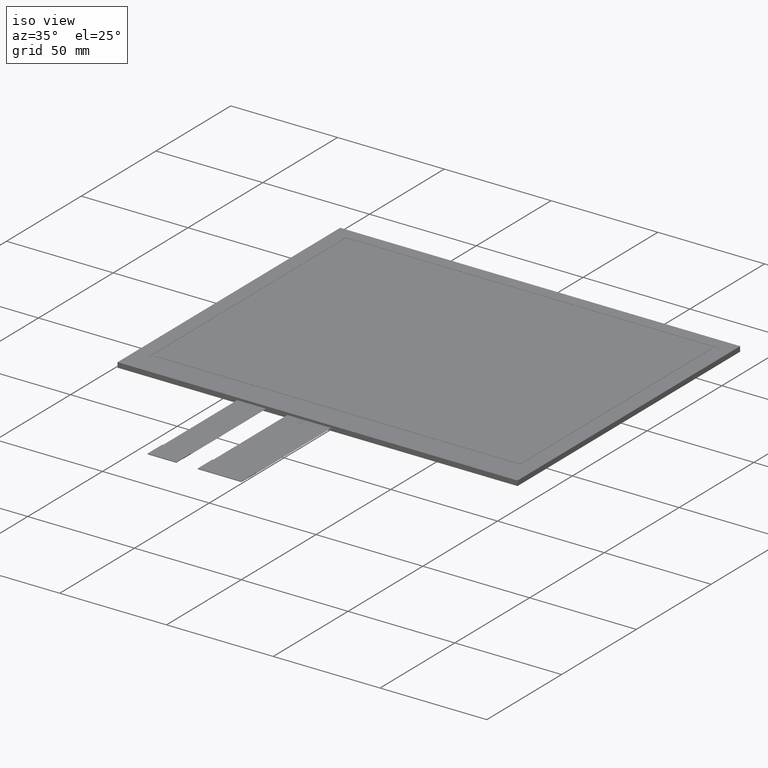
[diagram: clean part render]
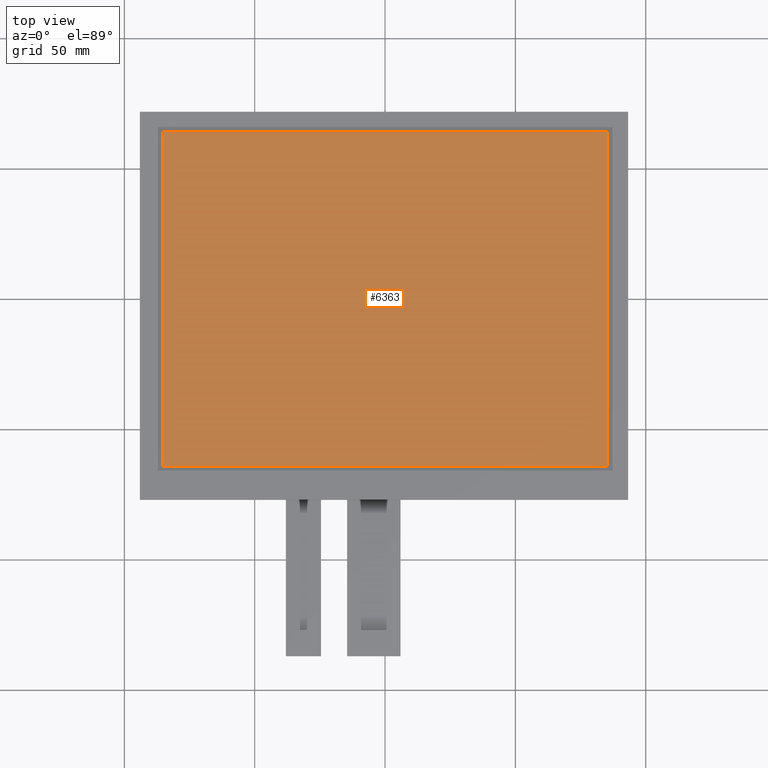
[diagram: tour spotlight — one face highlighted and labeled with its STEP entity id]
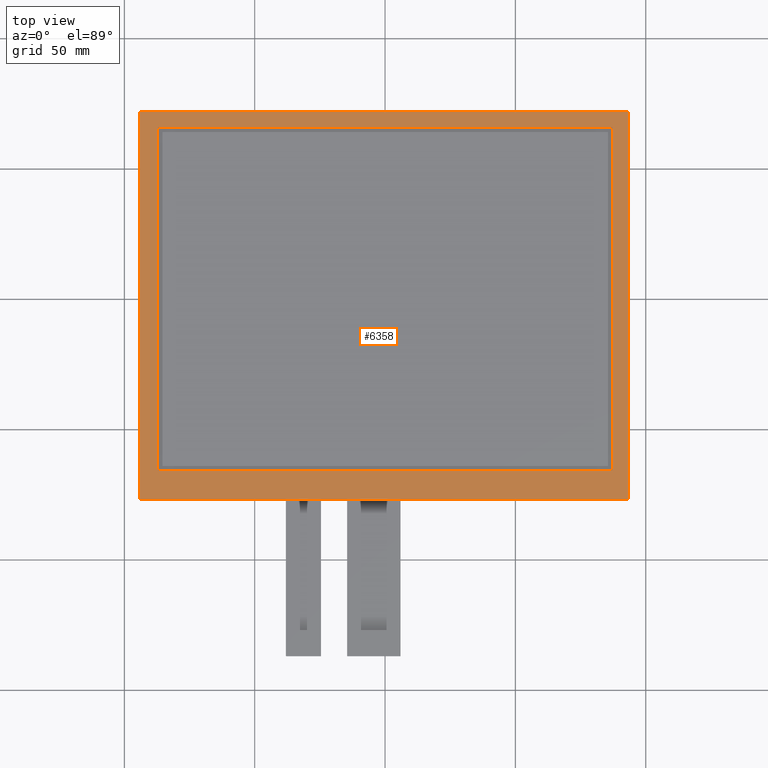
[diagram: tour spotlight — one face highlighted and labeled with its STEP entity id]
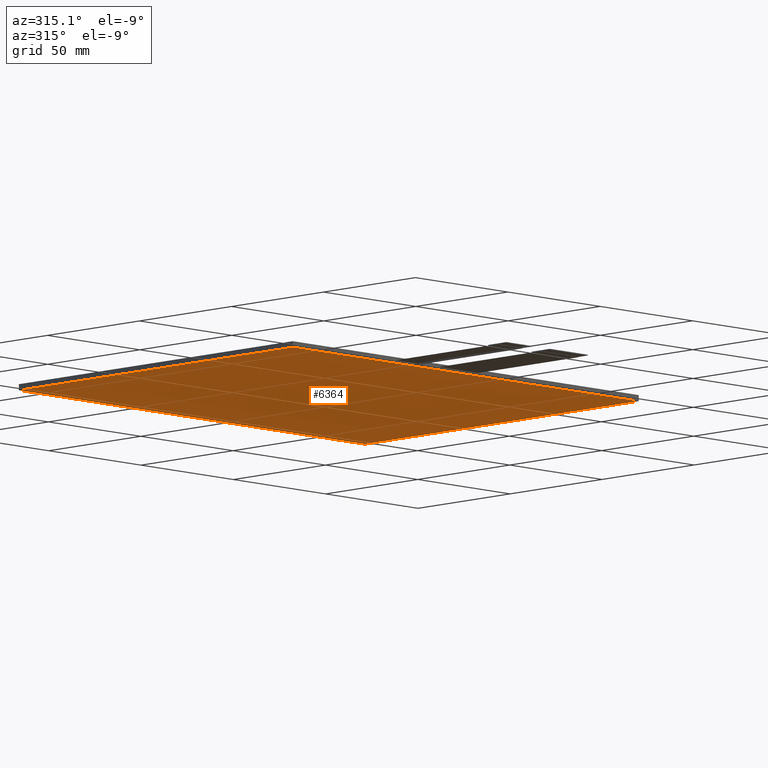
[diagram: tour spotlight — one face highlighted and labeled with its STEP entity id]
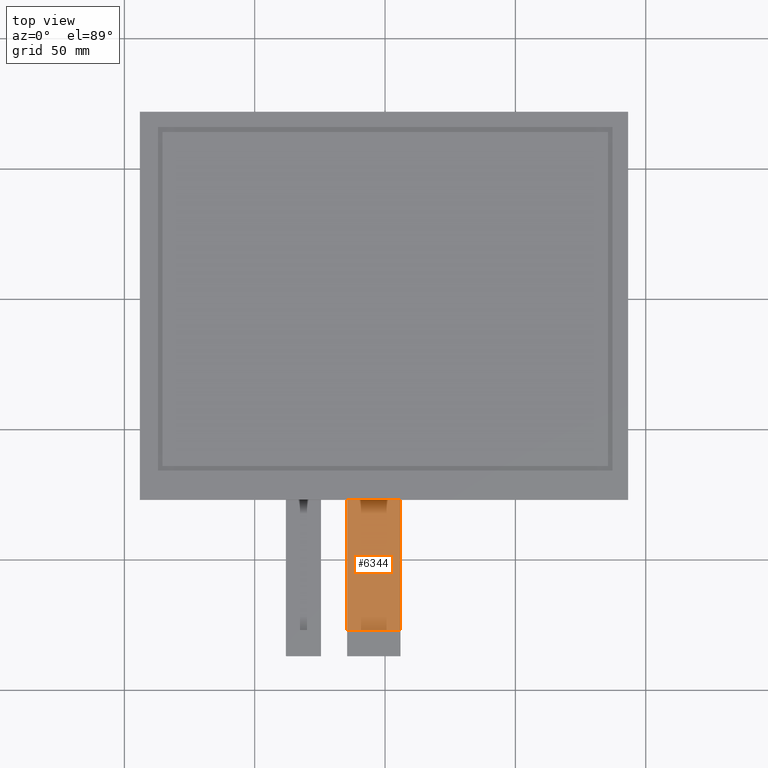
[diagram: tour spotlight — one face highlighted and labeled with its STEP entity id]
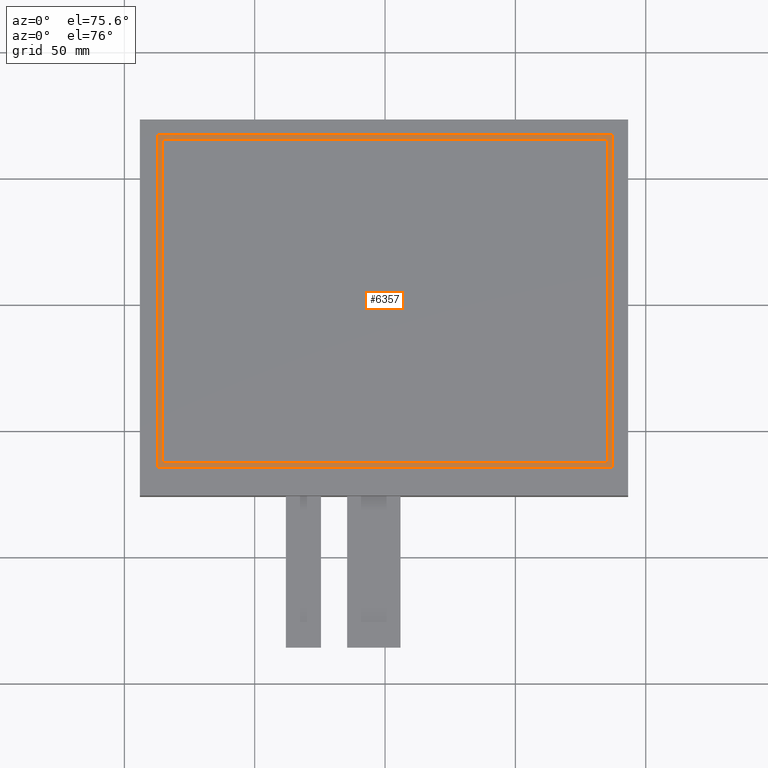
[diagram: tour spotlight — one face highlighted and labeled with its STEP entity id]
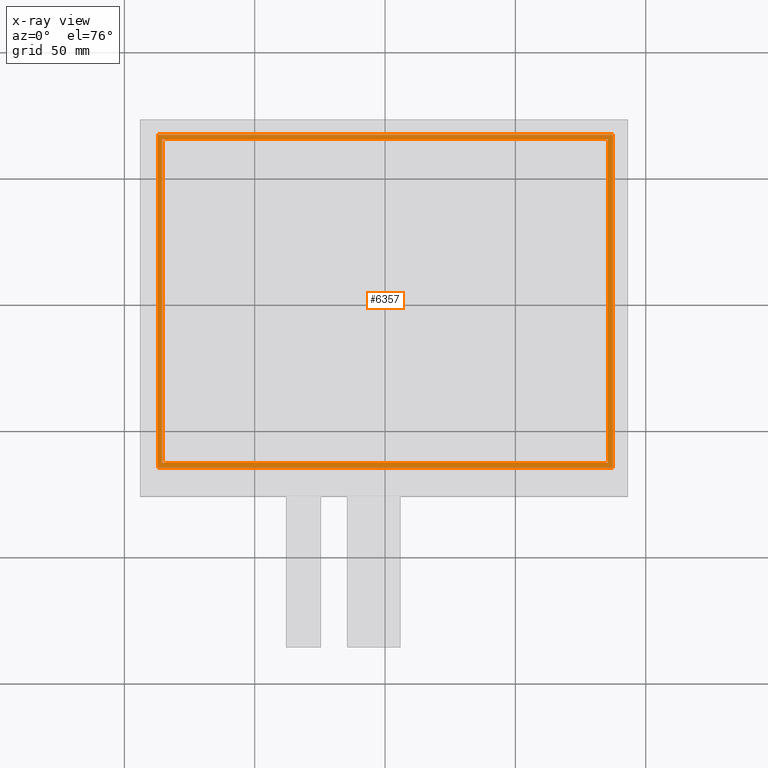
[diagram: x-ray of the same camera — body ghosted, this tour face saturated]
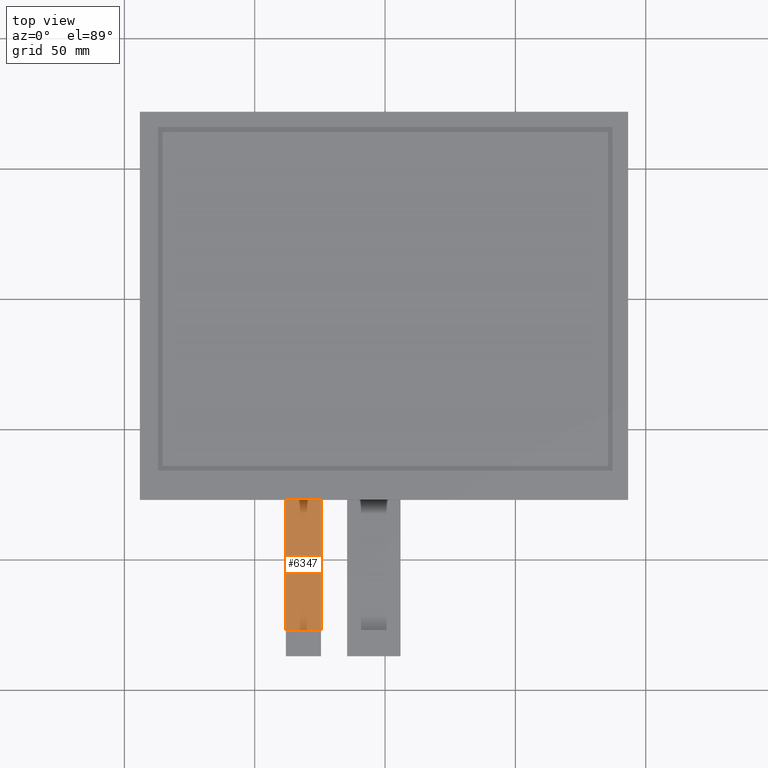
[diagram: tour spotlight — one face highlighted and labeled with its STEP entity id]
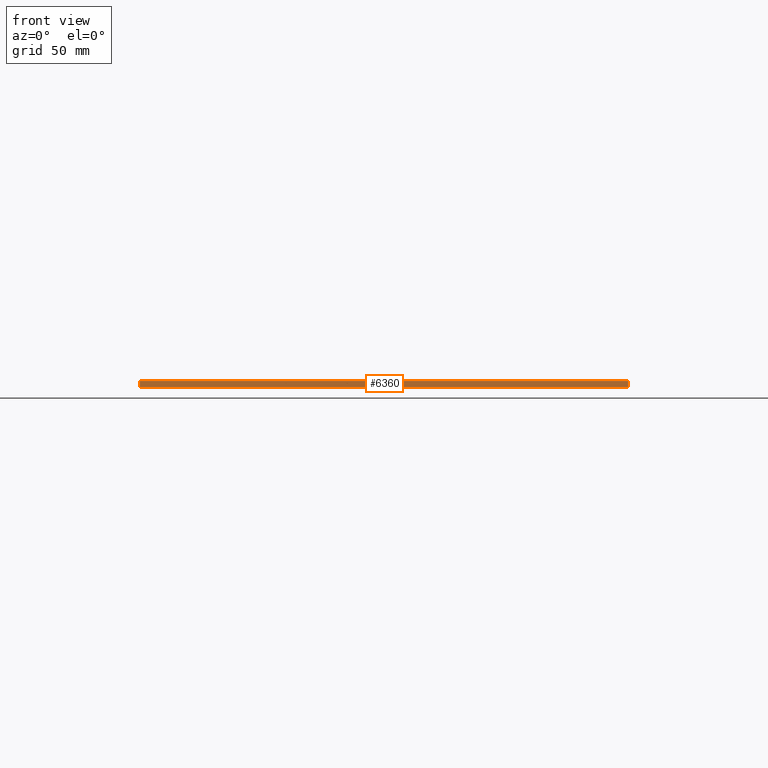
[diagram: tour spotlight — one face highlighted and labeled with its STEP entity id]
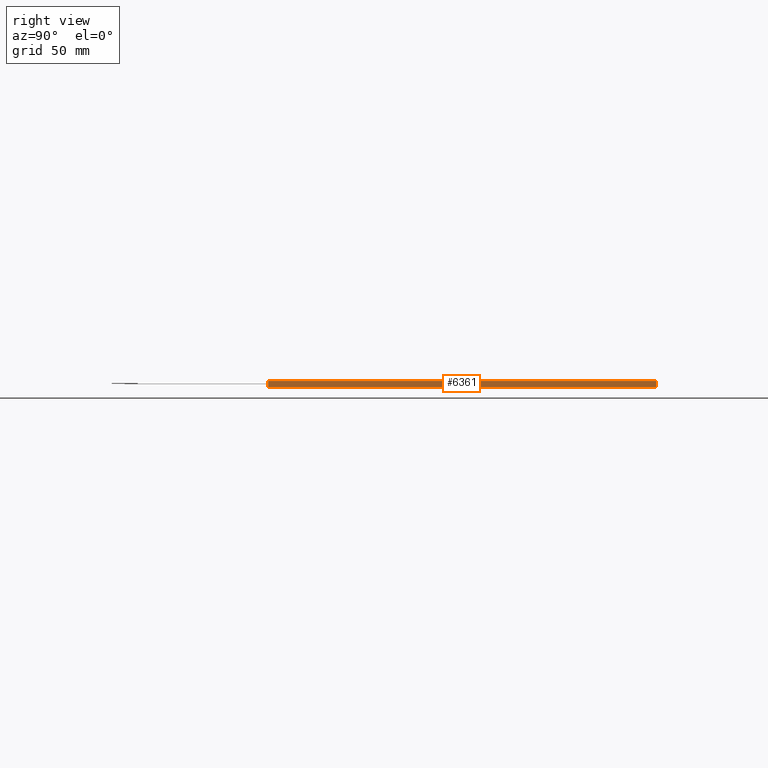
[diagram: tour spotlight — one face highlighted and labeled with its STEP entity id]
A machine part: a face-by-face anatomy tour. The part has 302 B-rep faces; the first image is the clean iso view, then the 8 largest visible faces are spotlighted one at a time (largest first), each with its STEP entity span.

Face 1 — top view, entity #6363. In plain terms, the highlighted planar face has unit normal (0, 0, 1).
Definition (entity closure, byte-faithful):
#425=PLANE('',#6693);
#727=FACE_OUTER_BOUND('',#1033,.T.);
#1033=EDGE_LOOP('',(#6051,#6052,#6053,#6054));
#1879=LINE('',#9907,#2759);
#1883=LINE('',#9915,#2763);
#1886=LINE('',#9921,#2766);
#1889=LINE('',#9926,#2769);
#2759=VECTOR('',#8131,10.);
#2763=VECTOR('',#8137,10.);
#2766=VECTOR('',#8142,10.);
#2769=VECTOR('',#8147,10.);
#3371=VERTEX_POINT('',#9905);
#3372=VERTEX_POINT('',#9906);
#3375=VERTEX_POINT('',#9914);
#3377=VERTEX_POINT('',#9920);
#4247=EDGE_CURVE('',#3371,#3372,#1879,.T.);
#4251=EDGE_CURVE('',#3375,#3371,#1883,.T.);
#4254=EDGE_CURVE('',#3377,#3375,#1886,.T.);
#4257=EDGE_CURVE('',#3372,#3377,#1889,.T.);
#6051=ORIENTED_EDGE('',*,*,#4247,.T.);
#6052=ORIENTED_EDGE('',*,*,#4257,.T.);
#6053=ORIENTED_EDGE('',*,*,#4254,.T.);
#6054=ORIENTED_EDGE('',*,*,#4251,.T.);
#6363=ADVANCED_FACE('',(#727),#425,.T.);
#6693=AXIS2_PLACEMENT_3D('',#9978,#8193,#8194);
#8131=DIRECTION('',(1.,0.,0.));
#8137=DIRECTION('',(1.38561375928257E-16,-1.,0.));
#8142=DIRECTION('',(-1.,0.,0.));
#8147=DIRECTION('',(1.38561375928257E-16,1.,0.));
#8193=DIRECTION('center_axis',(0.,0.,1.));
#8194=DIRECTION('ref_axis',(1.,0.,0.));
#9905=CARTESIAN_POINT('',(-85.45,-64.1,0.));
#9906=CARTESIAN_POINT('',(85.45,-64.1,0.));
#9907=CARTESIAN_POINT('',(-42.925,-64.1,0.));
#9914=CARTESIAN_POINT('',(-85.45,64.1,0.));
#9915=CARTESIAN_POINT('',(-85.45,30.775,0.));
#9920=CARTESIAN_POINT('',(85.45,64.1,0.));
#9921=CARTESIAN_POINT('',(42.525,64.1,0.));
#9926=CARTESIAN_POINT('',(85.45,-33.325,0.));
#9978=CARTESIAN_POINT('Origin',(-0.400000000000009,-2.54999999999999,0.));

Face 2 — top view, entity #6358. In plain terms, the highlighted planar face has unit normal (0, 0, 1).
Definition (entity closure, byte-faithful):
#126=FACE_BOUND('',#1026,.T.);
#420=PLANE('',#6688);
#722=FACE_OUTER_BOUND('',#1025,.T.);
#1025=EDGE_LOOP('',(#6019,#6020,#6021,#6022));
#1026=EDGE_LOOP('',(#6023,#6024,#6025,#6026));
#1891=LINE('',#9931,#2771);
#1895=LINE('',#9939,#2775);
#1898=LINE('',#9945,#2778);
#1901=LINE('',#9950,#2781);
#1903=LINE('',#9956,#2783);
#1904=LINE('',#9958,#2784);
#1905=LINE('',#9960,#2785);
#1906=LINE('',#9961,#2786);
#2771=VECTOR('',#8151,10.);
#2775=VECTOR('',#8157,10.);
#2778=VECTOR('',#8162,10.);
#2781=VECTOR('',#8167,10.);
#2783=VECTOR('',#8173,10.);
#2784=VECTOR('',#8174,10.);
#2785=VECTOR('',#8175,10.);
#2786=VECTOR('',#8176,10.);
#3379=VERTEX_POINT('',#9929);
#3380=VERTEX_POINT('',#9930);
#3383=VERTEX_POINT('',#9938);
#3385=VERTEX_POINT('',#9944);
#3387=VERTEX_POINT('',#9954);
#3388=VERTEX_POINT('',#9955);
#3389=VERTEX_POINT('',#9957);
#3390=VERTEX_POINT('',#9959);
#4259=EDGE_CURVE('',#3379,#3380,#1891,.T.);
#4263=EDGE_CURVE('',#3383,#3379,#1895,.T.);
#4266=EDGE_CURVE('',#3385,#3383,#1898,.T.);
#4269=EDGE_CURVE('',#3380,#3385,#1901,.T.);
#4271=EDGE_CURVE('',#3387,#3388,#1903,.T.);
#4272=EDGE_CURVE('',#3388,#3389,#1904,.T.);
#4273=EDGE_CURVE('',#3389,#3390,#1905,.T.);
#4274=EDGE_CURVE('',#3390,#3387,#1906,.T.);
#6019=ORIENTED_EDGE('',*,*,#4271,.T.);
#6020=ORIENTED_EDGE('',*,*,#4272,.T.);
#6021=ORIENTED_EDGE('',*,*,#4273,.T.);
#6022=ORIENTED_EDGE('',*,*,#4274,.T.);
#6023=ORIENTED_EDGE('',*,*,#4259,.T.);
#6024=ORIENTED_EDGE('',*,*,#4269,.T.);
#6025=ORIENTED_EDGE('',*,*,#4266,.T.);
#6026=ORIENTED_EDGE('',*,*,#4263,.T.);
#6358=ADVANCED_FACE('',(#722,#126),#420,.T.);
#6688=AXIS2_PLACEMENT_3D('',#9953,#8171,#8172);
#8151=DIRECTION('',(-2.69553389893816E-16,1.,0.));
#8157=DIRECTION('',(-1.,-1.52782985040159E-16,0.));
#8162=DIRECTION('',(0.,-1.,0.));
#8167=DIRECTION('',(1.,0.,0.));
#8171=DIRECTION('center_axis',(0.,0.,1.));
#8172=DIRECTION('ref_axis',(1.,0.,0.));
#8173=DIRECTION('',(-1.,0.,0.));
#8174=DIRECTION('',(2.3859729206182E-16,-1.,0.));
#8175=DIRECTION('',(1.,1.42260291462914E-16,0.));
#8176=DIRECTION('',(-1.1929864603091E-16,1.,0.));
#9929=CARTESIAN_POINT('',(-87.15,-65.9,0.));
#9930=CARTESIAN_POINT('',(-87.15,65.9,0.));
#9931=CARTESIAN_POINT('',(-87.15,-34.225,0.));
#9938=CARTESIAN_POINT('',(87.25,-65.9,0.));
#9939=CARTESIAN_POINT('',(43.425,-65.9,0.));
#9944=CARTESIAN_POINT('',(87.25,65.9,0.));
#9945=CARTESIAN_POINT('',(87.25,31.675,0.));
#9950=CARTESIAN_POINT('',(-43.775,65.9,0.));
#9953=CARTESIAN_POINT('Origin',(-0.400000000000009,-2.54999999999999,0.));
#9954=CARTESIAN_POINT('',(93.25,71.9,0.));
#9955=CARTESIAN_POINT('',(-94.05,71.9,0.));
#9956=CARTESIAN_POINT('',(93.25,71.9,0.));
#9957=CARTESIAN_POINT('',(-94.05,-77.,0.));
#9958=CARTESIAN_POINT('',(-94.05,71.9,0.));
#9959=CARTESIAN_POINT('',(93.25,-77.,0.));
#9960=CARTESIAN_POINT('',(-94.05,-77.,0.));
#9961=CARTESIAN_POINT('',(93.25,-77.,0.));

Face 3 — auxiliary view, entity #6364. In plain terms, the highlighted planar face has unit normal (0, 0, -1).
Definition (entity closure, byte-faithful):
#426=PLANE('',#6694);
#728=FACE_OUTER_BOUND('',#1034,.T.);
#1034=EDGE_LOOP('',(#6055,#6056,#6057,#6058));
#1908=LINE('',#9966,#2788);
#1910=LINE('',#9970,#2790);
#1912=LINE('',#9974,#2792);
#1914=LINE('',#9977,#2794);
#2788=VECTOR('',#8180,10.);
#2790=VECTOR('',#8184,10.);
#2792=VECTOR('',#8188,10.);
#2794=VECTOR('',#8192,10.);
#3391=VERTEX_POINT('',#9963);
#3392=VERTEX_POINT('',#9965);
#3393=VERTEX_POINT('',#9969);
#3394=VERTEX_POINT('',#9973);
#4276=EDGE_CURVE('',#3392,#3391,#1908,.T.);
#4278=EDGE_CURVE('',#3393,#3392,#1910,.T.);
#4280=EDGE_CURVE('',#3394,#3393,#1912,.T.);
#4282=EDGE_CURVE('',#3391,#3394,#1914,.T.);
#6055=ORIENTED_EDGE('',*,*,#4282,.T.);
#6056=ORIENTED_EDGE('',*,*,#4280,.T.);
#6057=ORIENTED_EDGE('',*,*,#4278,.T.);
#6058=ORIENTED_EDGE('',*,*,#4276,.T.);
#6364=ADVANCED_FACE('',(#728),#426,.T.);
#6694=AXIS2_PLACEMENT_3D('',#9979,#8195,#8196);
#8180=DIRECTION('',(-2.3859729206182E-16,1.,0.));
#8184=DIRECTION('',(-1.,-1.42260291462914E-16,0.));
#8188=DIRECTION('',(1.1929864603091E-16,-1.,0.));
#8192=DIRECTION('',(1.,0.,0.));
#8195=DIRECTION('center_axis',(0.,0.,-1.));
#8196=DIRECTION('ref_axis',(-1.,0.,0.));
#9963=CARTESIAN_POINT('',(-94.05,71.9,-2.35));
#9965=CARTESIAN_POINT('',(-94.05,-77.,-2.35));
#9966=CARTESIAN_POINT('',(-94.05,71.9,-2.35));
#9969=CARTESIAN_POINT('',(93.25,-77.,-2.35));
#9970=CARTESIAN_POINT('',(-94.05,-77.,-2.35));
#9973=CARTESIAN_POINT('',(93.25,71.9,-2.35));
#9974=CARTESIAN_POINT('',(93.25,-77.,-2.35));
#9977=CARTESIAN_POINT('',(93.25,71.9,-2.35));
#9979=CARTESIAN_POINT('Origin',(-0.400000000000009,-2.54999999999999,-2.35));

Face 4 — top view, entity #6344. In plain terms, the highlighted planar face has unit normal (0, 0, 1).
Definition (entity closure, byte-faithful):
#406=PLANE('',#6674);
#708=FACE_OUTER_BOUND('',#1010,.T.);
#1010=EDGE_LOOP('',(#5955,#5956,#5957,#5958));
#1858=LINE('',#9864,#2738);
#1861=LINE('',#9870,#2741);
#1871=LINE('',#9889,#2751);
#1872=LINE('',#9891,#2752);
#2738=VECTOR('',#8088,10.);
#2741=VECTOR('',#8093,10.);
#2751=VECTOR('',#8111,10.);
#2752=VECTOR('',#8114,10.);
#3360=VERTEX_POINT('',#9861);
#3361=VERTEX_POINT('',#9863);
#3363=VERTEX_POINT('',#9869);
#3368=VERTEX_POINT('',#9887);
#4226=EDGE_CURVE('',#3361,#3360,#1858,.T.);
#4229=EDGE_CURVE('',#3360,#3363,#1861,.T.);
#4239=EDGE_CURVE('',#3363,#3368,#1871,.T.);
#4240=EDGE_CURVE('',#3361,#3368,#1872,.T.);
#5955=ORIENTED_EDGE('',*,*,#4229,.T.);
#5956=ORIENTED_EDGE('',*,*,#4239,.T.);
#5957=ORIENTED_EDGE('',*,*,#4240,.F.);
#5958=ORIENTED_EDGE('',*,*,#4226,.T.);
#6344=ADVANCED_FACE('',(#708),#406,.T.);
#6674=AXIS2_PLACEMENT_3D('',#9890,#8112,#8113);
#8088=DIRECTION('',(4.81096644004234E-16,-1.,0.));
#8093=DIRECTION('',(1.,0.,0.));
#8111=DIRECTION('',(-1.85037170770859E-16,1.,0.));
#8112=DIRECTION('center_axis',(0.,0.,1.));
#8113=DIRECTION('ref_axis',(1.,0.,0.));
#8114=DIRECTION('',(1.,1.42260291462914E-16,0.));
#9861=CARTESIAN_POINT('',(-14.55,-127.,-1.1));
#9863=CARTESIAN_POINT('',(-14.55,-77.,-1.1));
#9864=CARTESIAN_POINT('',(-14.55,-77.,-1.1));
#9869=CARTESIAN_POINT('',(5.95000000000003,-127.,-1.1));
#9870=CARTESIAN_POINT('',(0.82500000000002,-127.,-1.1));
#9887=CARTESIAN_POINT('',(5.95000000000002,-77.,-1.1));
#9889=CARTESIAN_POINT('',(5.95000000000003,-137.,-1.1));
#9890=CARTESIAN_POINT('Origin',(-4.29999999999999,-107.,-1.1));
#9891=CARTESIAN_POINT('',(44.475,-77.,-1.1));

Face 5 — auxiliary view, entity #6357. An x-ray twin of the same camera follows (body ghosted, this face saturated) — the face is partly hidden behind the body. In plain terms, the highlighted planar face has unit normal (0, 0, -1).
Definition (entity closure, byte-faithful):
#125=FACE_BOUND('',#1024,.T.);
#419=PLANE('',#6687);
#721=FACE_OUTER_BOUND('',#1023,.T.);
#1023=EDGE_LOOP('',(#6011,#6012,#6013,#6014));
#1024=EDGE_LOOP('',(#6015,#6016,#6017,#6018));
#1881=LINE('',#9911,#2761);
#1885=LINE('',#9918,#2765);
#1888=LINE('',#9924,#2768);
#1890=LINE('',#9927,#2770);
#1893=LINE('',#9935,#2773);
#1897=LINE('',#9942,#2777);
#1900=LINE('',#9948,#2780);
#1902=LINE('',#9951,#2782);
#2761=VECTOR('',#8133,10.);
#2765=VECTOR('',#8139,10.);
#2768=VECTOR('',#8144,10.);
#2770=VECTOR('',#8148,10.);
#2773=VECTOR('',#8153,10.);
#2777=VECTOR('',#8159,10.);
#2780=VECTOR('',#8164,10.);
#2782=VECTOR('',#8168,10.);
#3373=VERTEX_POINT('',#9908);
#3374=VERTEX_POINT('',#9910);
#3376=VERTEX_POINT('',#9916);
#3378=VERTEX_POINT('',#9922);
#3381=VERTEX_POINT('',#9932);
#3382=VERTEX_POINT('',#9934);
#3384=VERTEX_POINT('',#9940);
#3386=VERTEX_POINT('',#9946);
#4249=EDGE_CURVE('',#3373,#3374,#1881,.T.);
#4253=EDGE_CURVE('',#3376,#3373,#1885,.T.);
#4256=EDGE_CURVE('',#3378,#3376,#1888,.T.);
#4258=EDGE_CURVE('',#3374,#3378,#1890,.T.);
#4261=EDGE_CURVE('',#3381,#3382,#1893,.T.);
#4265=EDGE_CURVE('',#3384,#3381,#1897,.T.);
#4268=EDGE_CURVE('',#3386,#3384,#1900,.T.);
#4270=EDGE_CURVE('',#3382,#3386,#1902,.T.);
#6011=ORIENTED_EDGE('',*,*,#4270,.F.);
#6012=ORIENTED_EDGE('',*,*,#4261,.F.);
#6013=ORIENTED_EDGE('',*,*,#4265,.F.);
#6014=ORIENTED_EDGE('',*,*,#4268,.F.);
#6015=ORIENTED_EDGE('',*,*,#4258,.F.);
#6016=ORIENTED_EDGE('',*,*,#4249,.F.);
#6017=ORIENTED_EDGE('',*,*,#4253,.F.);
#6018=ORIENTED_EDGE('',*,*,#4256,.F.);
#6357=ADVANCED_FACE('',(#721,#125),#419,.F.);
#6687=AXIS2_PLACEMENT_3D('',#9952,#8169,#8170);
#8133=DIRECTION('',(1.,0.,0.));
#8139=DIRECTION('',(1.38561375928257E-16,-1.,0.));
#8144=DIRECTION('',(-1.,0.,0.));
#8148=DIRECTION('',(1.38561375928257E-16,1.,0.));
#8153=DIRECTION('',(-2.69553389893816E-16,1.,0.));
#8159=DIRECTION('',(-1.,-1.52782985040159E-16,0.));
#8164=DIRECTION('',(0.,-1.,0.));
#8168=DIRECTION('',(1.,0.,0.));
#8169=DIRECTION('center_axis',(0.,0.,-1.));
#8170=DIRECTION('ref_axis',(-1.,0.,0.));
#9908=CARTESIAN_POINT('',(-85.45,-64.1,-0.1));
#9910=CARTESIAN_POINT('',(85.45,-64.1,-0.1));
#9911=CARTESIAN_POINT('',(85.45,-64.1,-0.1));
#9916=CARTESIAN_POINT('',(-85.45,64.1,-0.1));
#9918=CARTESIAN_POINT('',(-85.45,-64.1,-0.1));
#9922=CARTESIAN_POINT('',(85.45,64.1,-0.1));
#9924=CARTESIAN_POINT('',(-85.45,64.1,-0.1));
#9927=CARTESIAN_POINT('',(85.45,64.1,-0.1));
#9932=CARTESIAN_POINT('',(-87.15,-65.9,-0.1));
#9934=CARTESIAN_POINT('',(-87.15,65.9,-0.1));
#9935=CARTESIAN_POINT('',(-87.15,65.9,-0.1));
#9940=CARTESIAN_POINT('',(87.25,-65.9,-0.1));
#9942=CARTESIAN_POINT('',(-87.15,-65.9,-0.1));
#9946=CARTESIAN_POINT('',(87.25,65.9,-0.1));
#9948=CARTESIAN_POINT('',(87.25,-65.9,-0.1));
#9951=CARTESIAN_POINT('',(87.25,65.9,-0.1));
#9952=CARTESIAN_POINT('Origin',(0.0499999999999901,2.66453525910038E-14,
-0.1));

Face 6 — top view, entity #6347. In plain terms, the highlighted planar face has unit normal (0, 0, 1).
Definition (entity closure, byte-faithful):
#409=PLANE('',#6677);
#711=FACE_OUTER_BOUND('',#1013,.T.);
#1013=EDGE_LOOP('',(#5971,#5972,#5973,#5974));
#1850=LINE('',#9848,#2730);
#1865=LINE('',#9878,#2745);
#1876=LINE('',#9899,#2756);
#1877=LINE('',#9901,#2757);
#2730=VECTOR('',#8076,10.);
#2745=VECTOR('',#8101,10.);
#2756=VECTOR('',#8122,10.);
#2757=VECTOR('',#8125,10.);
#3354=VERTEX_POINT('',#9845);
#3355=VERTEX_POINT('',#9847);
#3365=VERTEX_POINT('',#9877);
#3370=VERTEX_POINT('',#9897);
#4218=EDGE_CURVE('',#3355,#3354,#1850,.T.);
#4233=EDGE_CURVE('',#3354,#3365,#1865,.T.);
#4244=EDGE_CURVE('',#3365,#3370,#1876,.T.);
#4245=EDGE_CURVE('',#3355,#3370,#1877,.T.);
#5971=ORIENTED_EDGE('',*,*,#4233,.T.);
#5972=ORIENTED_EDGE('',*,*,#4244,.T.);
#5973=ORIENTED_EDGE('',*,*,#4245,.F.);
#5974=ORIENTED_EDGE('',*,*,#4218,.T.);
#6347=ADVANCED_FACE('',(#711),#409,.T.);
#6677=AXIS2_PLACEMENT_3D('',#9900,#8123,#8124);
#8076=DIRECTION('',(6.66133814775094E-16,-1.,0.));
#8101=DIRECTION('',(1.,0.,0.));
#8122=DIRECTION('',(-2.22044604925031E-16,1.,0.));
#8123=DIRECTION('center_axis',(0.,0.,1.));
#8124=DIRECTION('ref_axis',(1.,0.,0.));
#8125=DIRECTION('',(1.,1.42260291462914E-16,0.));
#9845=CARTESIAN_POINT('',(-38.05,-127.,-1.1));
#9847=CARTESIAN_POINT('',(-38.05,-77.,-1.1));
#9848=CARTESIAN_POINT('',(-38.05,-77.,-1.1));
#9877=CARTESIAN_POINT('',(-24.55,-127.,-1.1));
#9878=CARTESIAN_POINT('',(-27.925,-127.,-1.1));
#9897=CARTESIAN_POINT('',(-24.55,-77.,-1.1));
#9899=CARTESIAN_POINT('',(-24.55,-137.,-1.1));
#9900=CARTESIAN_POINT('Origin',(-31.3,-107.,-1.1));
#9901=CARTESIAN_POINT('',(30.975,-77.,-1.1));

Face 7 — front view, entity #6360. In plain terms, the highlighted planar face has unit normal (0, -1, 0).
Definition (entity closure, byte-faithful):
#127=FACE_BOUND('',#1029,.T.);
#128=FACE_BOUND('',#1030,.T.);
#422=PLANE('',#6690);
#724=FACE_OUTER_BOUND('',#1028,.T.);
#1028=EDGE_LOOP('',(#6031,#6032,#6033,#6034));
#1029=EDGE_LOOP('',(#6035,#6036,#6037,#6038));
#1030=EDGE_LOOP('',(#6039,#6040,#6041,#6042));
#1851=LINE('',#9850,#2731);
#1859=LINE('',#9866,#2739);
#1870=LINE('',#9888,#2750);
#1872=LINE('',#9891,#2752);
#1873=LINE('',#9893,#2753);
#1875=LINE('',#9898,#2755);
#1877=LINE('',#9901,#2757);
#1878=LINE('',#9903,#2758);
#1905=LINE('',#9960,#2785);
#1909=LINE('',#9967,#2789);
#1910=LINE('',#9970,#2790);
#1911=LINE('',#9971,#2791);
#2731=VECTOR('',#8077,10.);
#2739=VECTOR('',#8089,10.);
#2750=VECTOR('',#8110,10.);
#2752=VECTOR('',#8114,10.);
#2753=VECTOR('',#8117,10.);
#2755=VECTOR('',#8121,10.);
#2757=VECTOR('',#8125,10.);
#2758=VECTOR('',#8128,10.);
#2785=VECTOR('',#8175,10.);
#2789=VECTOR('',#8181,10.);
#2790=VECTOR('',#8184,10.);
#2791=VECTOR('',#8185,10.);
#3355=VERTEX_POINT('',#9847);
#3356=VERTEX_POINT('',#9849);
#3361=VERTEX_POINT('',#9863);
#3362=VERTEX_POINT('',#9865);
#3367=VERTEX_POINT('',#9885);
#3368=VERTEX_POINT('',#9887);
#3369=VERTEX_POINT('',#9895);
#3370=VERTEX_POINT('',#9897);
#3389=VERTEX_POINT('',#9957);
#3390=VERTEX_POINT('',#9959);
#3392=VERTEX_POINT('',#9965);
#3393=VERTEX_POINT('',#9969);
#4219=EDGE_CURVE('',#3356,#3355,#1851,.T.);
#4227=EDGE_CURVE('',#3362,#3361,#1859,.T.);
#4238=EDGE_CURVE('',#3368,#3367,#1870,.T.);
#4240=EDGE_CURVE('',#3361,#3368,#1872,.T.);
#4241=EDGE_CURVE('',#3367,#3362,#1873,.T.);
#4243=EDGE_CURVE('',#3370,#3369,#1875,.T.);
#4245=EDGE_CURVE('',#3355,#3370,#1877,.T.);
#4246=EDGE_CURVE('',#3369,#3356,#1878,.T.);
#4273=EDGE_CURVE('',#3389,#3390,#1905,.T.);
#4277=EDGE_CURVE('',#3389,#3392,#1909,.T.);
#4278=EDGE_CURVE('',#3393,#3392,#1910,.T.);
#4279=EDGE_CURVE('',#3390,#3393,#1911,.T.);
#6031=ORIENTED_EDGE('',*,*,#4273,.F.);
#6032=ORIENTED_EDGE('',*,*,#4277,.T.);
#6033=ORIENTED_EDGE('',*,*,#4278,.F.);
#6034=ORIENTED_EDGE('',*,*,#4279,.F.);
#6035=ORIENTED_EDGE('',*,*,#4238,.T.);
#6036=ORIENTED_EDGE('',*,*,#4241,.T.);
#6037=ORIENTED_EDGE('',*,*,#4227,.T.);
#6038=ORIENTED_EDGE('',*,*,#4240,.T.);
#6039=ORIENTED_EDGE('',*,*,#4243,.T.);
#6040=ORIENTED_EDGE('',*,*,#4246,.T.);
#6041=ORIENTED_EDGE('',*,*,#4219,.T.);
#6042=ORIENTED_EDGE('',*,*,#4245,.T.);
#6360=ADVANCED_FACE('',(#724,#127,#128),#422,.T.);
#6690=AXIS2_PLACEMENT_3D('',#9968,#8182,#8183);
#8077=DIRECTION('',(0.,0.,1.));
#8089=DIRECTION('',(0.,0.,1.));
#8110=DIRECTION('',(0.,0.,-1.));
#8114=DIRECTION('',(1.,1.42260291462914E-16,0.));
#8117=DIRECTION('',(-1.,-1.42260291462914E-16,0.));
#8121=DIRECTION('',(0.,0.,-1.));
#8125=DIRECTION('',(1.,1.42260291462914E-16,0.));
#8128=DIRECTION('',(-1.,-1.42260291462914E-16,0.));
#8175=DIRECTION('',(1.,1.42260291462914E-16,0.));
#8181=DIRECTION('',(0.,0.,-1.));
#8182=DIRECTION('center_axis',(1.42260291462914E-16,-1.,0.));
#8183=DIRECTION('ref_axis',(-1.,-1.42260291462914E-16,0.));
#8184=DIRECTION('',(-1.,-1.42260291462914E-16,0.));
#8185=DIRECTION('',(0.,0.,-1.));
#9847=CARTESIAN_POINT('',(-38.05,-77.,-1.1));
#9849=CARTESIAN_POINT('',(-38.05,-77.,-1.2));
#9850=CARTESIAN_POINT('',(-38.05,-77.,-0.55));
#9863=CARTESIAN_POINT('',(-14.55,-77.,-1.1));
#9865=CARTESIAN_POINT('',(-14.55,-77.,-1.2));
#9866=CARTESIAN_POINT('',(-14.55,-77.,-0.55));
#9885=CARTESIAN_POINT('',(5.95000000000002,-77.,-1.2));
#9887=CARTESIAN_POINT('',(5.95000000000002,-77.,-1.1));
#9888=CARTESIAN_POINT('',(5.95000000000002,-77.,-0.55));
#9891=CARTESIAN_POINT('',(44.475,-77.,-1.1));
#9893=CARTESIAN_POINT('',(44.475,-77.,-1.2));
#9895=CARTESIAN_POINT('',(-24.55,-77.,-1.2));
#9897=CARTESIAN_POINT('',(-24.55,-77.,-1.1));
#9898=CARTESIAN_POINT('',(-24.55,-77.,-0.55));
#9901=CARTESIAN_POINT('',(30.975,-77.,-1.1));
#9903=CARTESIAN_POINT('',(30.975,-77.,-1.2));
#9957=CARTESIAN_POINT('',(-94.05,-77.,0.));
#9959=CARTESIAN_POINT('',(93.25,-77.,0.));
#9960=CARTESIAN_POINT('',(-94.05,-77.,0.));
#9965=CARTESIAN_POINT('',(-94.05,-77.,-2.35));
#9967=CARTESIAN_POINT('',(-94.05,-77.,0.));
#9968=CARTESIAN_POINT('Origin',(93.25,-77.,0.));
#9969=CARTESIAN_POINT('',(93.25,-77.,-2.35));
#9970=CARTESIAN_POINT('',(-94.05,-77.,-2.35));
#9971=CARTESIAN_POINT('',(93.25,-77.,0.));

Face 8 — right view, entity #6361. In plain terms, the highlighted planar face has unit normal (1, 0, 0).
Definition (entity closure, byte-faithful):
#423=PLANE('',#6691);
#725=FACE_OUTER_BOUND('',#1031,.T.);
#1031=EDGE_LOOP('',(#6043,#6044,#6045,#6046));
#1906=LINE('',#9961,#2786);
#1911=LINE('',#9971,#2791);
#1912=LINE('',#9974,#2792);
#1913=LINE('',#9975,#2793);
#2786=VECTOR('',#8176,10.);
#2791=VECTOR('',#8185,10.);
#2792=VECTOR('',#8188,10.);
#2793=VECTOR('',#8189,10.);
#3387=VERTEX_POINT('',#9954);
#3390=VERTEX_POINT('',#9959);
#3393=VERTEX_POINT('',#9969);
#3394=VERTEX_POINT('',#9973);
#4274=EDGE_CURVE('',#3390,#3387,#1906,.T.);
#4279=EDGE_CURVE('',#3390,#3393,#1911,.T.);
#4280=EDGE_CURVE('',#3394,#3393,#1912,.T.);
#4281=EDGE_CURVE('',#3387,#3394,#1913,.T.);
#6043=ORIENTED_EDGE('',*,*,#4274,.F.);
#6044=ORIENTED_EDGE('',*,*,#4279,.T.);
#6045=ORIENTED_EDGE('',*,*,#4280,.F.);
#6046=ORIENTED_EDGE('',*,*,#4281,.F.);
#6361=ADVANCED_FACE('',(#725),#423,.T.);
#6691=AXIS2_PLACEMENT_3D('',#9972,#8186,#8187);
#8176=DIRECTION('',(-1.1929864603091E-16,1.,0.));
#8185=DIRECTION('',(0.,0.,-1.));
#8186=DIRECTION('center_axis',(1.,1.1929864603091E-16,0.));
#8187=DIRECTION('ref_axis',(1.1929864603091E-16,-1.,0.));
#8188=DIRECTION('',(1.1929864603091E-16,-1.,0.));
#8189=DIRECTION('',(0.,0.,-1.));
#9954=CARTESIAN_POINT('',(93.25,71.9,0.));
#9959=CARTESIAN_POINT('',(93.25,-77.,0.));
#9961=CARTESIAN_POINT('',(93.25,-77.,0.));
#9969=CARTESIAN_POINT('',(93.25,-77.,-2.35));
#9971=CARTESIAN_POINT('',(93.25,-77.,0.));
#9972=CARTESIAN_POINT('Origin',(93.25,71.9,0.));
#9973=CARTESIAN_POINT('',(93.25,71.9,-2.35));
#9974=CARTESIAN_POINT('',(93.25,-77.,-2.35));
#9975=CARTESIAN_POINT('',(93.25,71.9,0.));